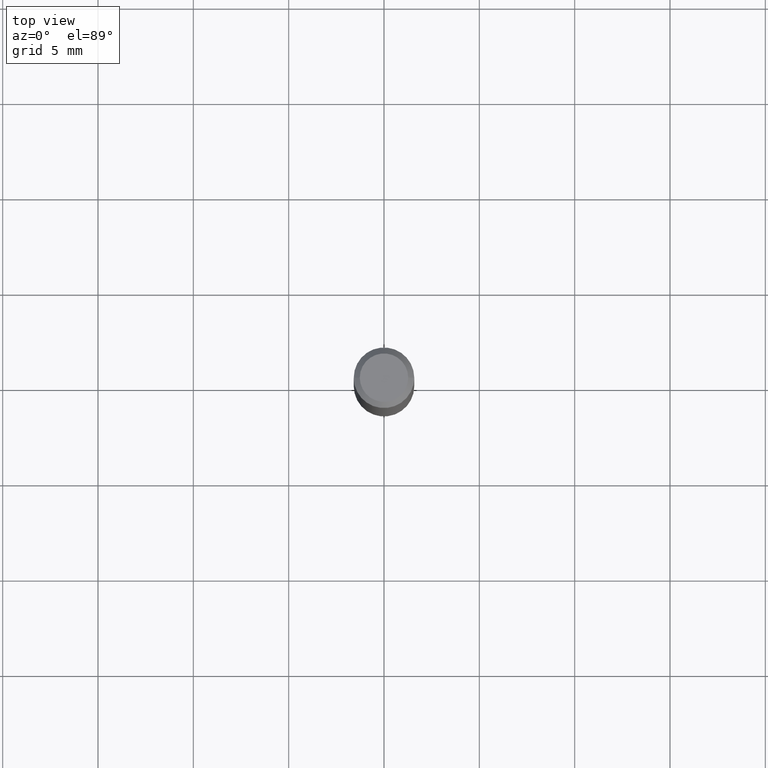
[diagram: clean part render]
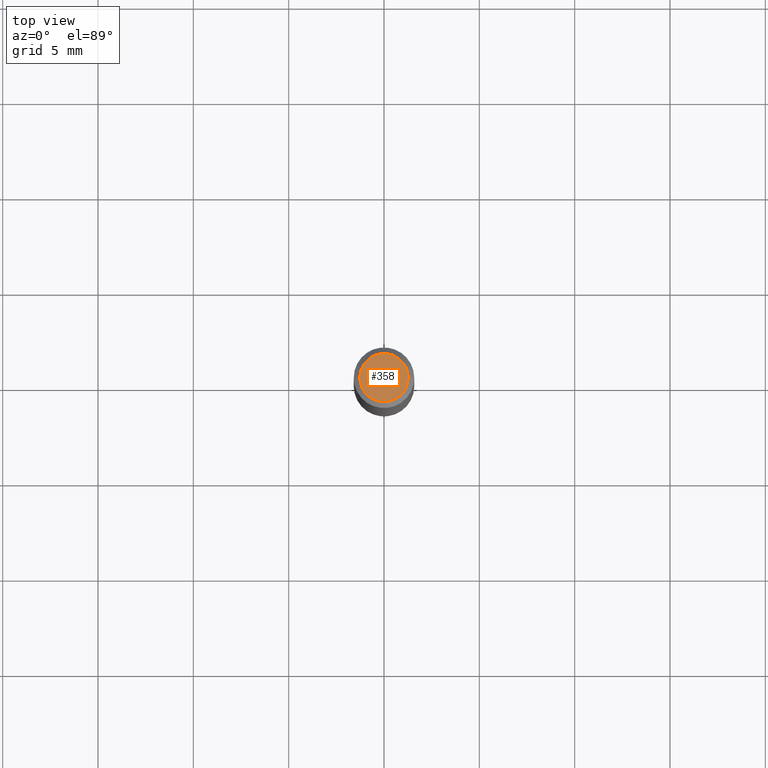
[diagram: same view with one face highlighted and labeled with its STEP entity id]
A machine part, top view. The second image highlights one B-rep face of the part: STEP entity #358.
In plain terms, the highlighted planar face has unit normal (0, -0, -1).
Its self-contained STEP definition (entity closure, byte-faithful):
#1 = DIRECTION ( 'NONE',  ( 1.000000000000000000, -6.982962677686265922E-15, 4.875957971899673662E-29 ) ) ;
#74 = DIRECTION ( 'NONE',  ( 2.438088387897960049E-29, -3.491481338843145188E-15, -1.000000000000000000 ) ) ;
#78 = AXIS2_PLACEMENT_3D ( 'NONE', #150, #368, #1 ) ;
#85 = DIRECTION ( 'NONE',  ( -2.445468806185136597E-29, 3.491481338843145583E-15, 1.000000000000000000 ) ) ;
#91 = EDGE_CURVE ( 'NONE', #379, #200, #388, .T. ) ;
#98 = PLANE ( 'NONE',  #195 ) ;
#150 = CARTESIAN_POINT ( 'NONE',  ( 3.893286209682126177E-47, -5.558580879666067980E-33, -1.592040838891559689E-18 ) ) ;
#180 = FACE_OUTER_BOUND ( 'NONE', #468, .T. ) ;
#195 = AXIS2_PLACEMENT_3D ( 'NONE', #397, #74, #486 ) ;
#200 = VERTEX_POINT ( 'NONE', #341 ) ;
#250 = EDGE_CURVE ( 'NONE', #200, #379, #419, .T. ) ;
#278 = ORIENTED_EDGE ( 'NONE', *, *, #250, .T. ) ;
#323 = CARTESIAN_POINT ( 'NONE',  ( -0.04999999999999999584, 3.709698922520826725E-16, -1.592040838894077649E-18 ) ) ;
#334 = ORIENTED_EDGE ( 'NONE', *, *, #91, .T. ) ;
#341 = CARTESIAN_POINT ( 'NONE',  ( 0.04999999999999999584, -4.077247707424184212E-16, -1.592040838888913461E-18 ) ) ;
#358 = ADVANCED_FACE ( 'NONE', ( #180 ), #98, .F. ) ;
#368 = DIRECTION ( 'NONE',  ( -2.445468806185136597E-29, 3.491481338843145583E-15, 1.000000000000000000 ) ) ;
#379 = VERTEX_POINT ( 'NONE', #323 ) ;
#385 = CARTESIAN_POINT ( 'NONE',  ( 3.893286209682126177E-47, -5.558580879666067980E-33, -1.592040838891559689E-18 ) ) ;
#388 = CIRCLE ( 'NONE', #78, 0.04999999999999999584 ) ;
#397 = CARTESIAN_POINT ( 'NONE',  ( 1.946643104841063088E-47, -2.779290439833033990E-33, -7.960204194457798443E-19 ) ) ;
#419 = CIRCLE ( 'NONE', #487, 0.04999999999999999584 ) ;
#427 = DIRECTION ( 'NONE',  ( 1.000000000000000000, -6.982962677686265922E-15, 4.875957971899673662E-29 ) ) ;
#468 = EDGE_LOOP ( 'NONE', ( #334, #278 ) ) ;
#486 = DIRECTION ( 'NONE',  ( -1.000000000000000000, 6.982962677686265922E-15, -4.876176775795935793E-29 ) ) ;
#487 = AXIS2_PLACEMENT_3D ( 'NONE', #385, #85, #427 ) ;